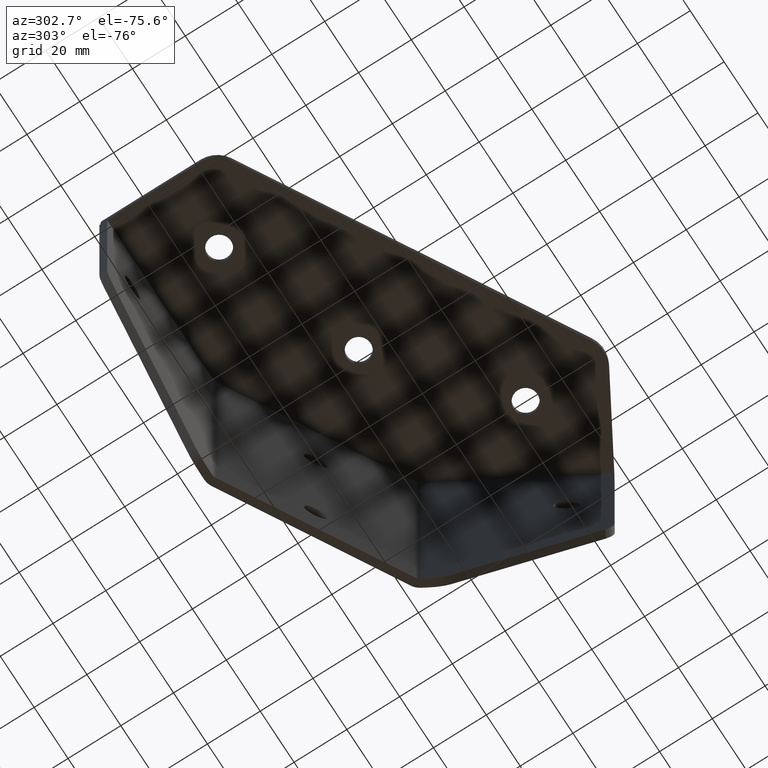
[diagram: clean part render]
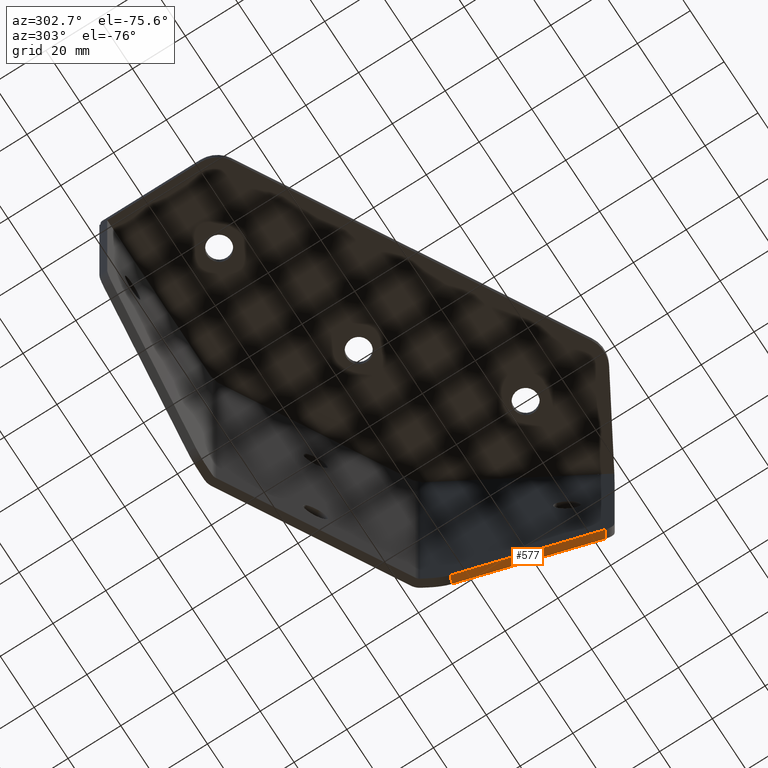
[diagram: same view with one face highlighted and labeled with its STEP entity id]
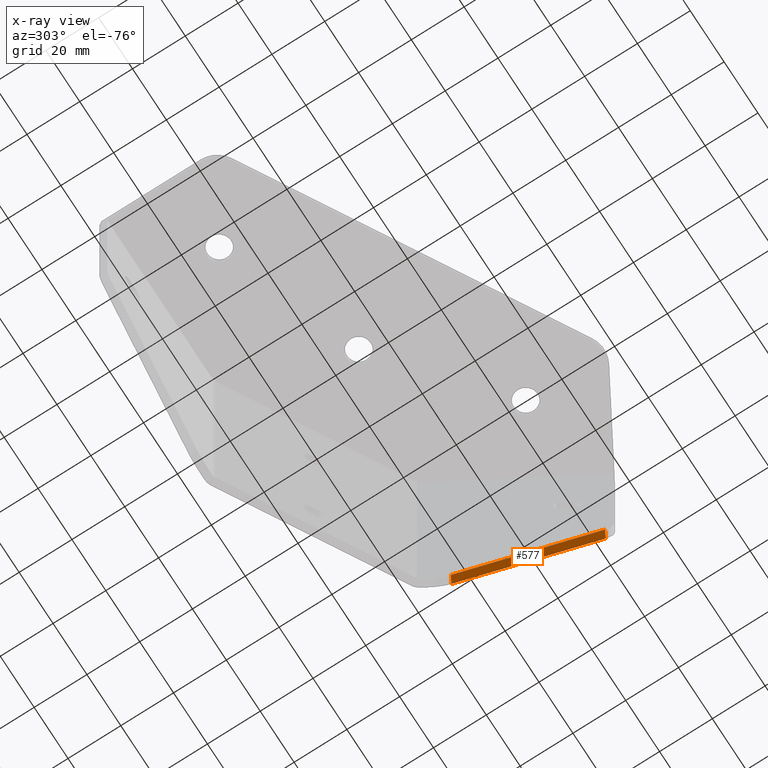
[diagram: x-ray of the same camera — body ghosted, the highlighted face saturated]
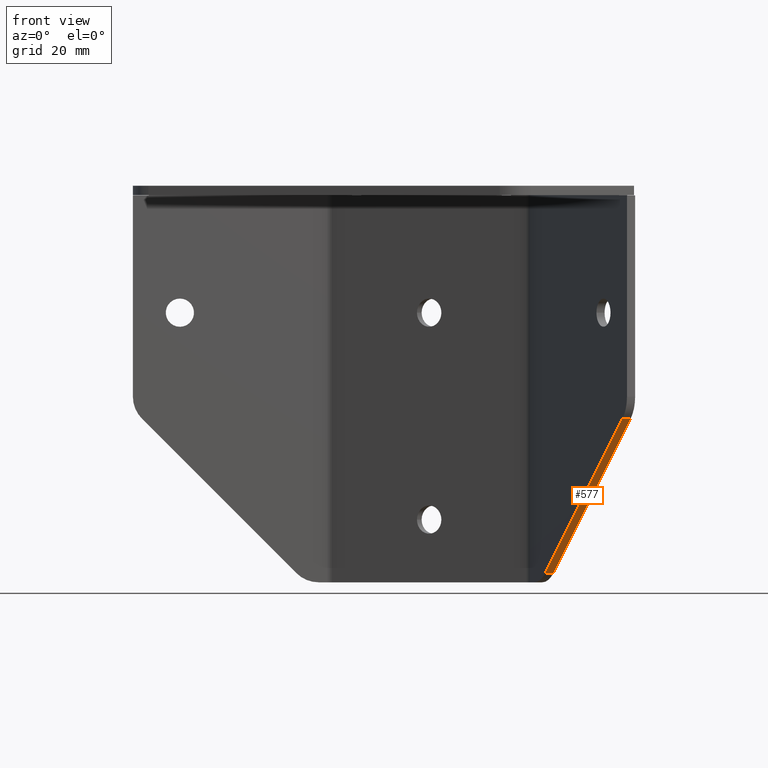
[diagram: same view with one face highlighted and labeled with its STEP entity id]
A machine part, auxiliary view. The second image highlights one B-rep face of the part: STEP entity #577.
The next image is the same camera in x-ray: the body ghosted, the highlighted face saturated — about 0% of this face is hidden behind the body in this view.
A second angle (front view) of the same face is appended — the face is thin or edge-on in the first view.
In plain terms, the highlighted planar face has unit normal (0.3536, -0.6124, -0.7071).
Its self-contained STEP definition (entity closure, byte-faithful):
#41 = CARTESIAN_POINT ( 'NONE',  ( 659.1165698965362481, 1046.987140149959259, 1136.928932188134240 ) ) ;
#47 = VERTEX_POINT ( 'NONE', #1253 ) ;
#52 = CARTESIAN_POINT ( 'NONE',  ( 671.4241306401276006, 1025.669819665898558, 1161.544053639740696 ) ) ;
#68 = DIRECTION ( 'NONE',  ( 0.3535533910230300725, -0.6123724354476739462, 0.7071067811865481278 ) ) ;
#72 = CARTESIAN_POINT ( 'NONE',  ( 656.5184936880109490, 1045.487140151591802, 1136.928932188134240 ) ) ;
#326 = DIRECTION ( 'NONE',  ( 0.3535533910230300725, -0.6123724354476739462, 0.7071067811865481278 ) ) ;
#474 = LINE ( 'NONE', #2593, #1630 ) ;
#512 = DIRECTION ( 'NONE',  ( -0.8660254037843836405, -0.5000000000000952571, 0.000000000000000000 ) ) ;
#577 = ADVANCED_FACE ( 'NONE', ( #583 ), #2028, .T. ) ;
#583 = FACE_OUTER_BOUND ( 'NONE', #1749, .T. ) ;
#588 = LINE ( 'NONE', #52, #1338 ) ;
#645 = VECTOR ( 'NONE', #978, 1000.000000000000000 ) ;
#674 = VERTEX_POINT ( 'NONE', #72 ) ;
#792 = VECTOR ( 'NONE', #1123, 1000.000000000000114 ) ;
#966 = LINE ( 'NONE', #2618, #645 ) ;
#978 = DIRECTION ( 'NONE',  ( -0.8660254037843836405, -0.5000000000000952571, 0.000000000000000000 ) ) ;
#984 = EDGE_CURVE ( 'NONE', #2840, #47, #474, .T. ) ;
#1116 = EDGE_CURVE ( 'NONE', #1120, #2840, #588, .T. ) ;
#1120 = VERTEX_POINT ( 'NONE', #41 ) ;
#1123 = DIRECTION ( 'NONE',  ( 0.3535533910230300725, -0.6123724354476739462, 0.7071067811865481278 ) ) ;
#1235 = EDGE_CURVE ( 'NONE', #674, #47, #3047, .T. ) ;
#1253 = CARTESIAN_POINT ( 'NONE',  ( 681.1336151988705296, 1002.852499129399916, 1186.159175150012288 ) ) ;
#1338 = VECTOR ( 'NONE', #68, 1000.000000000000114 ) ;
#1630 = VECTOR ( 'NONE', #512, 1000.000000000000000 ) ;
#1749 = EDGE_LOOP ( 'NONE', ( #2050, #2168, #2861, #2105 ) ) ;
#1796 = EDGE_CURVE ( 'NONE', #1120, #674, #966, .T. ) ;
#2028 = PLANE ( 'NONE',  #2862 ) ;
#2050 = ORIENTED_EDGE ( 'NONE', *, *, #1796, .F. ) ;
#2105 = ORIENTED_EDGE ( 'NONE', *, *, #1235, .F. ) ;
#2168 = ORIENTED_EDGE ( 'NONE', *, *, #1116, .T. ) ;
#2220 = CARTESIAN_POINT ( 'NONE',  ( 668.8260544287745688, 1024.169819665898331, 1161.544053639740696 ) ) ;
#2325 = CARTESIAN_POINT ( 'NONE',  ( 668.8260544287745688, 1024.169819665898331, 1161.544053639740696 ) ) ;
#2593 = CARTESIAN_POINT ( 'NONE',  ( 681.1336151988705296, 1002.852499129399916, 1186.159175150012288 ) ) ;
#2618 = CARTESIAN_POINT ( 'NONE',  ( 656.5184936880109490, 1045.487140151591802, 1136.928932188134240 ) ) ;
#2816 = CARTESIAN_POINT ( 'NONE',  ( 683.7316913774800469, 1004.352499110495501, 1186.159175150012288 ) ) ;
#2840 = VERTEX_POINT ( 'NONE', #2816 ) ;
#2861 = ORIENTED_EDGE ( 'NONE', *, *, #984, .T. ) ;
#2862 = AXIS2_PLACEMENT_3D ( 'NONE', #2220, #3002, #326 ) ;
#3002 = DIRECTION ( 'NONE',  ( 0.3535533905933413990, -0.6123724356957561676, -0.7071067811865469066 ) ) ;
#3047 = LINE ( 'NONE', #2325, #792 ) ;